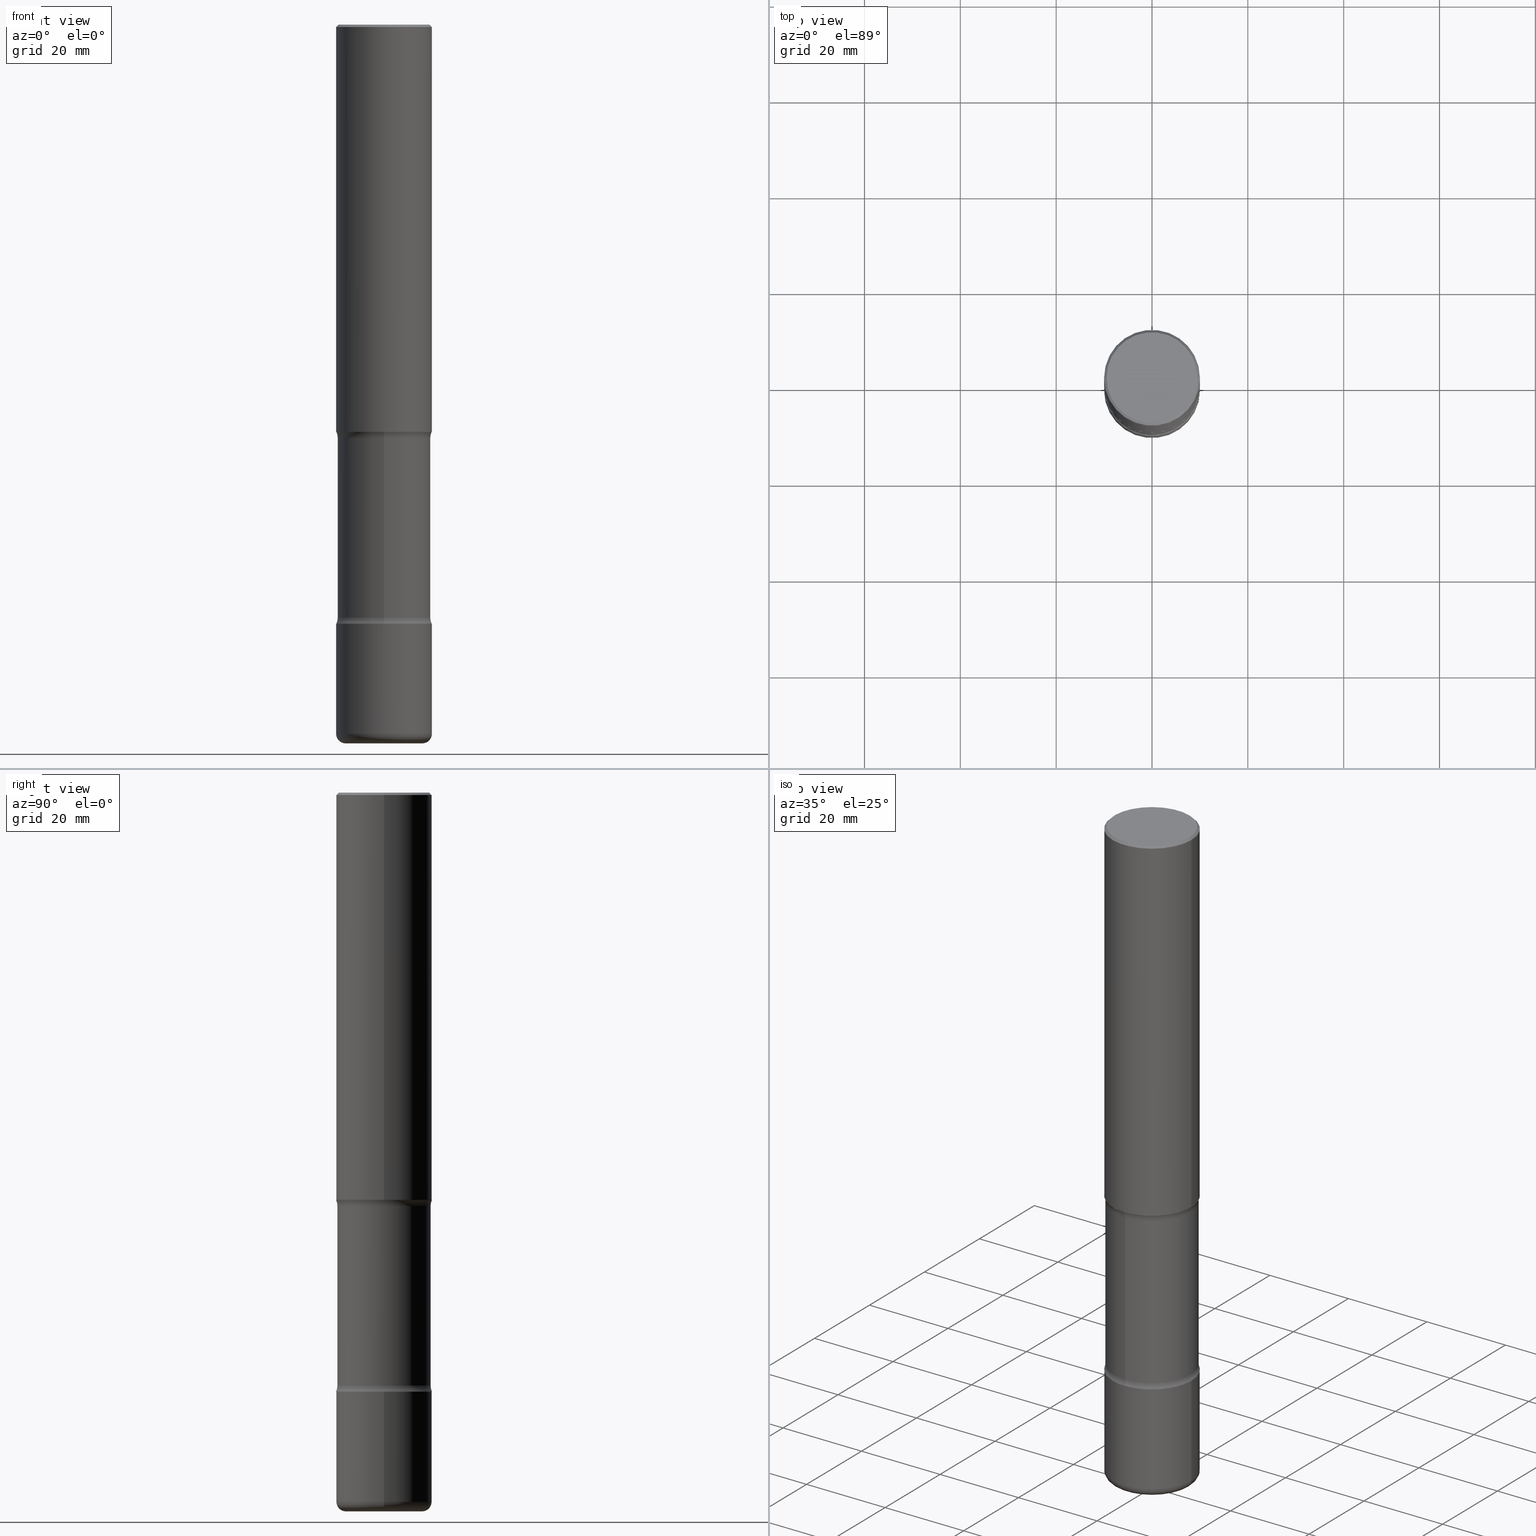
[diagram: canonical four-view strip — front | top / right | iso, engineering-drawing reading convention]
A machine part, canonical four-view strip (front | top / right | iso — engineering-drawing reading convention). The complete STEP part file that produces these views, byte-faithful:
ISO-10303-21;
HEADER;
FILE_DESCRIPTION (( 'STEP AP203' ),
    '1' );
FILE_NAME ('44787.STEP',
    '2024-03-02T03:17:34',
    ( '' ),
    ( '' ),
    'SwSTEP 2.0',
    'SolidWorks 2023',
    '' );
FILE_SCHEMA (( 'CONFIG_CONTROL_DESIGN' ));
ENDSEC;

DATA;
#1 = CALENDAR_DATE ( 2024, 1, 3 ) ;
#2 = CIRCLE ( 'NONE', #72, 0.3937000000000001609 ) ;
#3 = CIRCLE ( 'NONE', #278, 0.3937000000000001609 ) ;
#4 = DIRECTION ( 'NONE',  ( 6.860497997771532351E-15, 1.000000000000000000, 0.000000000000000000 ) ) ;
#5 = EDGE_CURVE ( 'NONE', #483, #218, #308, .T. ) ;
#6 = DATE_AND_TIME ( #13, #64 ) ;
#7 = ORIENTED_EDGE ( 'NONE', *, *, #240, .F. ) ;
#8 = EDGE_CURVE ( 'NONE', #447, #489, #71, .T. ) ;
#9 = CARTESIAN_POINT ( 'NONE',  ( 2.749192406205166047E-15, 0.3936999999999885036, -3.346399999999999153 ) ) ;
#10 = COORDINATED_UNIVERSAL_TIME_OFFSET ( 5, 0, .BEHIND. ) ;
#11 = CYLINDRICAL_SURFACE ( 'NONE', #108, 0.3937000000000002164 ) ;
#12 = DIRECTION ( 'NONE',  ( 2.536601494120493495E-29, -3.360974142769239712E-15, -1.000000000000000000 ) ) ;
#13 = CALENDAR_DATE ( 2024, 1, 3 ) ;
#14 = CIRCLE ( 'NONE', #413, 0.3831499999999999906 ) ;
#15 = VECTOR ( 'NONE', #169, 39.37007874015748143 ) ;
#16 = ADVANCED_FACE ( 'NONE', ( #267 ), #351, .F. ) ;
#17 = UNCERTAINTY_MEASURE_WITH_UNIT (LENGTH_MEASURE( 1.000000000000000082E-05 ), #96, 'distance_accuracy_value', 'NONE');
#18 = DIRECTION ( 'NONE',  ( 2.536601494120493495E-29, -3.360974142769239712E-15, -1.000000000000000000 ) ) ;
#19 = AXIS2_PLACEMENT_3D ( 'NONE', #202, #423, #382 ) ;
#20 = CC_DESIGN_APPROVAL ( #476, ( #486 ) ) ;
#21 = CARTESIAN_POINT ( 'NONE',  ( 1.203464108899828931E-28, -1.718227796471488199E-14, -4.921199999999998020 ) ) ;
#22 = DIRECTION ( 'NONE',  ( 6.982962677686265133E-15, 1.000000000000000000, -2.775563112689113934E-15 ) ) ;
#23 = ORIENTED_EDGE ( 'NONE', *, *, #432, .T. ) ;
#24 = ORIENTED_EDGE ( 'NONE', *, *, #497, .F. ) ;
#25 = CARTESIAN_POINT ( 'NONE',  ( 1.444171603492631822E-28, -2.061894304653818881E-14, -5.905499999999998195 ) ) ;
#26 = EDGE_CURVE ( 'NONE', #489, #200, #36, .T. ) ;
#27 = ORIENTED_EDGE ( 'NONE', *, *, #372, .T. ) ;
#28 = AXIS2_PLACEMENT_3D ( 'NONE', #110, #499, #469 ) ;
#29 = PLANE ( 'NONE',  #350 ) ;
#30 = ORIENTED_EDGE ( 'NONE', *, *, #360, .T. ) ;
#31 = EDGE_LOOP ( 'NONE', ( #35, #516, #362, #7 ) ) ;
#32 = DIRECTION ( 'NONE',  ( -2.445468806185136877E-29, 3.491481338843145188E-15, 1.000000000000000000 ) ) ;
#33 = DIRECTION ( 'NONE',  ( -1.000000000000000000, 6.982962677686265922E-15, -4.883557194083112340E-29 ) ) ;
#34 = DIRECTION ( 'NONE',  ( 2.536601494120493495E-29, -3.360974142769239712E-15, -1.000000000000000000 ) ) ;
#35 = ORIENTED_EDGE ( 'NONE', *, *, #165, .T. ) ;
#36 = CIRCLE ( 'NONE', #216, 0.3937000000000003830 ) ;
#37 = ADVANCED_FACE ( 'NONE', ( #555 ), #215, .F. ) ;
#38 = CARTESIAN_POINT ( 'NONE',  ( 8.167493925109434306E-29, -1.205834278836177543E-14, -3.396661292263528420 ) ) ;
#39 = PRODUCT_DEFINITION_FORMATION_WITH_SPECIFIED_SOURCE ( 'ANY', '', #541, .NOT_KNOWN. ) ;
#40 = PLANE ( 'NONE',  #396 ) ;
#41 = FACE_OUTER_BOUND ( 'NONE', #89, .T. ) ;
#42 = ORIENTED_EDGE ( 'NONE', *, *, #240, .T. ) ;
#43 = DIRECTION ( 'NONE',  ( -2.445468806185136877E-29, 3.491481338843145188E-15, 1.000000000000000000 ) ) ;
#44 = DIRECTION ( 'NONE',  ( 1.000000000000000000, -6.860497997771530774E-15, 4.842397131823518897E-29 ) ) ;
#45 = ADVANCED_FACE ( 'NONE', ( #91 ), #261, .T. ) ;
#46 = DATE_AND_TIME ( #366, #254 ) ;
#47 = AXIS2_PLACEMENT_3D ( 'NONE', #455, #286, #54 ) ;
#48 = EDGE_LOOP ( 'NONE', ( #556, #122, #503, #315 ) ) ;
#49 = ORIENTED_EDGE ( 'NONE', *, *, #26, .T. ) ;
#50 = PERSON_AND_ORGANIZATION ( #465, #149 ) ;
#51 = CARTESIAN_POINT ( 'NONE',  ( 1.453141793966108941E-28, -2.049048481344264493E-14, -5.905499999999998195 ) ) ;
#52 = PERSON_AND_ORGANIZATION ( #465, #149 ) ;
#53 = DIRECTION ( 'NONE',  ( -2.445468806185136597E-29, 3.491481338843145583E-15, 1.000000000000000000 ) ) ;
#54 = DIRECTION ( 'NONE',  ( 1.000000000000000000, -6.982962677686266711E-15, 4.876212485538977921E-29 ) ) ;
#55 = CC_DESIGN_PERSON_AND_ORGANIZATION_ASSIGNMENT ( #328, #279, ( #486 ) ) ;
#56 = DIRECTION ( 'NONE',  ( 1.000000000000000000, 0.000000000000000000, 0.000000000000000000 ) ) ;
#57 = CC_DESIGN_APPROVAL ( #212, ( #395 ) ) ;
#58 = CARTESIAN_POINT ( 'NONE',  ( -0.3736999999999998101, 2.644447966039787875E-15, 8.537024980182450727E-18 ) ) ;
#59 = CARTESIAN_POINT ( 'NONE',  ( 0.3150000000000001688, -2.281857629000936535E-14, -5.905499999999998195 ) ) ;
#60 = DIRECTION ( 'NONE',  ( 6.982962677686265922E-15, 1.000000000000000000, -2.851987987643756480E-15 ) ) ;
#61 = ADVANCED_FACE ( 'NONE', ( #41 ), #222, .T. ) ;
#62 = FACE_OUTER_BOUND ( 'NONE', #118, .T. ) ;
#63 = AXIS2_PLACEMENT_3D ( 'NONE', #158, #467, #548 ) ;
#64 = LOCAL_TIME ( 22, 17, 34.00000000000000000, #407 ) ;
#65 = DIRECTION ( 'NONE',  ( -0.7071067811865456854, 2.468850131082237733E-15, -0.7071067811865493491 ) ) ;
#66 = ORIENTED_EDGE ( 'NONE', *, *, #515, .T. ) ;
#67 = ADVANCED_FACE ( 'NONE', ( #496 ), #146, .T. ) ;
#68 = DIRECTION ( 'NONE',  ( 2.438088387897960049E-29, -3.491481338843145188E-15, -1.000000000000000000 ) ) ;
#69 = ORIENTED_EDGE ( 'NONE', *, *, #332, .T. ) ;
#70 = CARTESIAN_POINT ( 'NONE',  ( 8.167493925109434306E-29, -1.205834278836177543E-14, -3.396661292263528420 ) ) ;
#71 = CIRCLE ( 'NONE', #404, 0.1250000000000000278 ) ;
#72 = AXIS2_PLACEMENT_3D ( 'NONE', #234, #12, #412 ) ;
#73 = ORIENTED_EDGE ( 'NONE', *, *, #109, .F. ) ;
#74 = CC_DESIGN_APPROVAL ( #330, ( #39 ) ) ;
#75 = EDGE_LOOP ( 'NONE', ( #82, #365, #451, #337 ) ) ;
#76 = DIRECTION ( 'NONE',  ( 7.105427357601001859E-15, 1.000000000000000000, -3.491481338843145583E-15 ) ) ;
#77 = DIRECTION ( 'NONE',  ( -1.000000000000000000, 6.982962677686265922E-15, -4.876176775795935793E-29 ) ) ;
#78 = EDGE_CURVE ( 'NONE', #140, #183, #533, .T. ) ;
#79 = ORIENTED_EDGE ( 'NONE', *, *, #265, .F. ) ;
#80 = CARTESIAN_POINT ( 'NONE',  ( -0.3936999999999998279, 2.679362779428218735E-15, -0.02000000000000008715 ) ) ;
#81 = DIRECTION ( 'NONE',  ( -2.445468806185136597E-29, 3.491481338843145583E-15, 1.000000000000000000 ) ) ;
#82 = ORIENTED_EDGE ( 'NONE', *, *, #101, .F. ) ;
#83 = CIRCLE ( 'NONE', #19, 0.3937000000000001609 ) ;
#84 = CC_DESIGN_SECURITY_CLASSIFICATION ( #395, ( #39 ) ) ;
#85 = FACE_OUTER_BOUND ( 'NONE', #48, .T. ) ;
#86 = ORIENTED_EDGE ( 'NONE', *, *, #244, .F. ) ;
#87 = EDGE_LOOP ( 'NONE', ( #196, #258, #30, #73 ) ) ;
#88 = LINE ( 'NONE', #161, #512 ) ;
#89 = EDGE_LOOP ( 'NONE', ( #477, #223, #480, #319 ) ) ;
#90 = VERTEX_POINT ( 'NONE', #58 ) ;
#91 = FACE_OUTER_BOUND ( 'NONE', #128, .T. ) ;
#92 = VERTEX_POINT ( 'NONE', #331 ) ;
#93 =( NAMED_UNIT ( * ) SI_UNIT ( $, .STERADIAN. ) SOLID_ANGLE_UNIT ( ) );
#94 = VECTOR ( 'NONE', #500, 39.37007874015748143 ) ;
#95 = AXIS2_PLACEMENT_3D ( 'NONE', #475, #76, #557 ) ;
#96 =( CONVERSION_BASED_UNIT ( 'INCH', #205 ) LENGTH_UNIT ( ) NAMED_UNIT ( #313 ) );
#97 = LINE ( 'NONE', #189, #117 ) ;
#98 = EDGE_CURVE ( 'NONE', #152, #90, #253, .T. ) ;
#99 = APPROVAL_ROLE ( '' ) ;
#100 = AXIS2_PLACEMENT_3D ( 'NONE', #186, #367, #495 ) ;
#101 = EDGE_CURVE ( 'NONE', #298, #509, #375, .T. ) ;
#102 = PLANE ( 'NONE',  #359 ) ;
#103 = DIRECTION ( 'NONE',  ( 2.536601494120493495E-29, -3.360974142769239712E-15, -1.000000000000000000 ) ) ;
#104 = DIRECTION ( 'NONE',  ( 2.536601494120493495E-29, -3.360974142769239712E-15, -1.000000000000000000 ) ) ;
#105 = CARTESIAN_POINT ( 'NONE',  ( 1.444171603492631822E-28, -2.061894304653818881E-14, -5.905499999999998195 ) ) ;
#106 = CARTESIAN_POINT ( 'NONE',  ( -2.628599807846016670E-15, -0.3831500000000204742, -5.905499999999997307 ) ) ;
#107 = CARTESIAN_POINT ( 'NONE',  ( 0.3736999999999998101, -2.667287895133366781E-15, 8.537024980219274507E-18 ) ) ;
#108 = AXIS2_PLACEMENT_3D ( 'NONE', #135, #53, #247 ) ;
#109 = EDGE_CURVE ( 'NONE', #137, #171, #168, .T. ) ;
#110 = CARTESIAN_POINT ( 'NONE',  ( 8.183516813017936514E-29, -1.168389315230469505E-14, -3.346399999999997821 ) ) ;
#111 = ADVANCED_FACE ( 'NONE', ( #139 ), #235, .F. ) ;
#112 = EDGE_LOOP ( 'NONE', ( #339, #389, #69, #86 ) ) ;
#113 = CARTESIAN_POINT ( 'NONE',  ( 0.3937000000000001609, -1.993147037091996521E-14, -4.921199999999998020 ) ) ;
#114 = CARTESIAN_POINT ( 'NONE',  ( -0.3937000000000003830, -1.754675671448371516E-14, -5.826799999999997759 ) ) ;
#115 = DIRECTION ( 'NONE',  ( 6.982962677686265922E-15, 1.000000000000000000, -2.851987987643756480E-15 ) ) ;
#116 = ORIENTED_EDGE ( 'NONE', *, *, #190, .F. ) ;
#117 = VECTOR ( 'NONE', #371, 39.37007874015748143 ) ;
#118 = EDGE_LOOP ( 'NONE', ( #294, #125, #505, #127 ) ) ;
#119 = DIRECTION ( 'NONE',  ( 1.000000000000000000, -6.982962677686265133E-15, 0.000000000000000000 ) ) ;
#120 = EDGE_CURVE ( 'NONE', #298, #137, #2, .T. ) ;
#121 = PRODUCT_RELATED_PRODUCT_CATEGORY ( 'detail', '', ( #541 ) ) ;
#122 = ORIENTED_EDGE ( 'NONE', *, *, #78, .T. ) ;
#123 = CARTESIAN_POINT ( 'NONE',  ( -2.664788934784287418E-15, -0.3831500000000169770, -4.870938707736466533 ) ) ;
#124 = ORIENTED_EDGE ( 'NONE', *, *, #185, .T. ) ;
#125 = ORIENTED_EDGE ( 'NONE', *, *, #185, .F. ) ;
#126 = CARTESIAN_POINT ( 'NONE',  ( -0.3937000000000000499, 2.797406750687514786E-15, -1.936584745033356735E-29 ) ) ;
#127 = ORIENTED_EDGE ( 'NONE', *, *, #5, .T. ) ;
#128 = EDGE_LOOP ( 'NONE', ( #408, #383, #436, #431 ) ) ;
#129 = EDGE_CURVE ( 'NONE', #152, #218, #97, .T. ) ;
#130 = CIRCLE ( 'NONE', #280, 0.3831500000000000461 ) ;
#131 = TOROIDAL_SURFACE ( 'NONE', #352, 0.5081500000000001016, 0.1250000000000000555 ) ;
#132 = DIRECTION ( 'NONE',  ( -2.445468806185136597E-29, 3.491481338843145583E-15, 1.000000000000000000 ) ) ;
#133 = ORIENTED_EDGE ( 'NONE', *, *, #197, .F. ) ;
#134 = APPROVAL_STATUS ( 'not_yet_approved' ) ;
#135 = CARTESIAN_POINT ( 'NONE',  ( 0.000000000000000000, 0.000000000000000000, 0.000000000000000000 ) ) ;
#136 = DIRECTION ( 'NONE',  ( -1.000000000000000000, 6.982962677686265922E-15, -4.876176775795935793E-29 ) ) ;
#137 = VERTEX_POINT ( 'NONE', #536 ) ;
#138 = COORDINATED_UNIVERSAL_TIME_OFFSET ( 5, 0, .BEHIND. ) ;
#139 = FACE_OUTER_BOUND ( 'NONE', #164, .T. ) ;
#140 = VERTEX_POINT ( 'NONE', #145 ) ;
#141 = AXIS2_PLACEMENT_3D ( 'NONE', #288, #545, #242 ) ;
#142 =( NAMED_UNIT ( * ) PLANE_ANGLE_UNIT ( ) SI_UNIT ( $, .RADIAN. ) );
#143 = ADVANCED_FACE ( 'NONE', ( #195 ), #206, .T. ) ;
#144 = PERSON_AND_ORGANIZATION ( #465, #149 ) ;
#145 = CARTESIAN_POINT ( 'NONE',  ( -0.3937000000000002164, -3.079454638853261231E-15, -3.346399999999997821 ) ) ;
#146 = CYLINDRICAL_SURFACE ( 'NONE', #484, 0.3831499999999999906 ) ;
#147 = CARTESIAN_POINT ( 'NONE',  ( 2.675522149955637761E-15, 0.3831499999999795070, -5.905499999999999972 ) ) ;
#148 = AXIS2_PLACEMENT_3D ( 'NONE', #322, #452, #282 ) ;
#149 = ORGANIZATION ( 'UNSPECIFIED', 'UNSPECIFIED', '' ) ;
#150 = DIRECTION ( 'NONE',  ( -6.982962677686265922E-15, -1.000000000000000000, 3.360974142769239318E-15 ) ) ;
#151 = DIRECTION ( 'NONE',  ( 2.536601494120493495E-29, -3.360974142769239712E-15, -1.000000000000000000 ) ) ;
#152 = VERTEX_POINT ( 'NONE', #107 ) ;
#153 = APPLICATION_CONTEXT ( 'configuration controlled 3d designs of mechanical parts and assemblies' ) ;
#154 = LINE ( 'NONE', #147, #368 ) ;
#155 = AXIS2_PLACEMENT_3D ( 'NONE', #177, #531, #287 ) ;
#156 = ADVANCED_FACE ( 'NONE', ( #470 ), #449, .T. ) ;
#157 = ORIENTED_EDGE ( 'NONE', *, *, #197, .T. ) ;
#158 = CARTESIAN_POINT ( 'NONE',  ( 1.203464108899828931E-28, -1.718227796471488199E-14, -4.921199999999998020 ) ) ;
#159 = ORIENTED_EDGE ( 'NONE', *, *, #354, .F. ) ;
#160 = DIRECTION ( 'NONE',  ( 1.000000000000000000, -6.982962677686267499E-15, 0.000000000000000000 ) ) ;
#161 = CARTESIAN_POINT ( 'NONE',  ( 0.3937000000000000499, -2.749192406205083217E-15, 1.919750796630860172E-29 ) ) ;
#162 = CARTESIAN_POINT ( 'NONE',  ( 1.453141793966108941E-28, -2.049048481344264493E-14, -5.905499999999998195 ) ) ;
#163 = CARTESIAN_POINT ( 'NONE',  ( -0.3937000000000001609, -1.596581396425554158E-14, -4.921199999999998020 ) ) ;
#164 = EDGE_LOOP ( 'NONE', ( #271, #347, #381, #355 ) ) ;
#165 = EDGE_CURVE ( 'NONE', #174, #447, #510, .T. ) ;
#166 = CARTESIAN_POINT ( 'NONE',  ( 8.163356291050434127E-29, -1.206426811583377416E-14, -3.396661292263528864 ) ) ;
#167 = ORIENTED_EDGE ( 'NONE', *, *, #528, .F. ) ;
#168 = CIRCLE ( 'NONE', #458, 0.1249999999999999584 ) ;
#169 = DIRECTION ( 'NONE',  ( -2.445468806185136877E-29, 3.491481338843145188E-15, 1.000000000000000000 ) ) ;
#170 = CARTESIAN_POINT ( 'NONE',  ( 2.609533152651356226E-15, 0.3736999999999998101, -1.300498063835582617E-15 ) ) ;
#171 = VERTEX_POINT ( 'NONE', #464 ) ;
#172 = CARTESIAN_POINT ( 'NONE',  ( -0.3937000000000002164, 2.797406750687515970E-15, -1.936584745033357576E-29 ) ) ;
#173 = CARTESIAN_POINT ( 'NONE',  ( 0.000000000000000000, 0.000000000000000000, 0.000000000000000000 ) ) ;
#174 = VERTEX_POINT ( 'NONE', #201 ) ;
#175 = CC_DESIGN_PERSON_AND_ORGANIZATION_ASSIGNMENT ( #181, #454, ( #39 ) ) ;
#176 = AXIS2_PLACEMENT_3D ( 'NONE', #162, #544, #115 ) ;
#177 = CARTESIAN_POINT ( 'NONE',  ( 1.424925763987954893E-28, -2.034416346517123547E-14, -5.826799999999997759 ) ) ;
#178 = VECTOR ( 'NONE', #43, 39.37007874015748143 ) ;
#179 = DATE_AND_TIME ( #225, #334 ) ;
#180 = ORIENTED_EDGE ( 'NONE', *, *, #502, .F. ) ;
#181 = PERSON_AND_ORGANIZATION ( #465, #149 ) ;
#182 = CARTESIAN_POINT ( 'NONE',  ( 0.3150000000000001688, -2.254379670864241201E-14, -5.826799999999997759 ) ) ;
#183 = VERTEX_POINT ( 'NONE', #537 ) ;
#184 = APPLICATION_PROTOCOL_DEFINITION ( 'international standard', 'config_control_design', 1994, #325 ) ;
#185 = EDGE_CURVE ( 'NONE', #90, #152, #324, .T. ) ;
#186 = CARTESIAN_POINT ( 'NONE',  ( 8.163356291050434127E-29, -1.206426811583377416E-14, -3.396661292263528864 ) ) ;
#187 = AXIS2_PLACEMENT_3D ( 'NONE', #173, #357, #519 ) ;
#188 = AXIS2_PLACEMENT_3D ( 'NONE', #401, #560, #314 ) ;
#189 = CARTESIAN_POINT ( 'NONE',  ( 0.3936999999999998279, -2.770807688499514156E-15, -0.02000000000000008715 ) ) ;
#190 = EDGE_CURVE ( 'NONE', #92, #399, #406, .T. ) ;
#191 = CARTESIAN_POINT ( 'NONE',  ( 1.191172866660927180E-28, -1.700679160071062336E-14, -4.870938707736467421 ) ) ;
#192 = AXIS2_PLACEMENT_3D ( 'NONE', #38, #378, #250 ) ;
#193 = APPROVAL_PERSON_ORGANIZATION ( #236, #476, #99 ) ;
#194 = DIRECTION ( 'NONE',  ( -1.000000000000000000, 6.982962677686266711E-15, 0.000000000000000000 ) ) ;
#195 = FACE_OUTER_BOUND ( 'NONE', #31, .T. ) ;
#196 = ORIENTED_EDGE ( 'NONE', *, *, #120, .F. ) ;
#197 = EDGE_CURVE ( 'NONE', #399, #276, #386, .T. ) ;
#198 = DIRECTION ( 'NONE',  ( 6.982962677686265922E-15, 1.000000000000000000, -2.851987987643756480E-15 ) ) ;
#199 = VERTEX_POINT ( 'NONE', #163 ) ;
#200 = VERTEX_POINT ( 'NONE', #9 ) ;
#201 = CARTESIAN_POINT ( 'NONE',  ( 2.675522149955574652E-15, 0.3831499999999879447, -3.396661292263529308 ) ) ;
#202 = CARTESIAN_POINT ( 'NONE',  ( 1.203464108899828931E-28, -1.718227796471488199E-14, -4.921199999999998020 ) ) ;
#203 = AXIS2_PLACEMENT_3D ( 'NONE', #415, #380, #384 ) ;
#204 = CIRCLE ( 'NONE', #95, 0.07870000000000031137 ) ;
#205 = LENGTH_MEASURE_WITH_UNIT ( LENGTH_MEASURE( 0.02539999999999999897 ), #487 );
#206 = CYLINDRICAL_SURFACE ( 'NONE', #176, 0.3831499999999999906 ) ;
#207 = EDGE_LOOP ( 'NONE', ( #445, #485, #345, #79 ) ) ;
#208 = FACE_OUTER_BOUND ( 'NONE', #207, .T. ) ;
#209 = ADVANCED_FACE ( 'NONE', ( #239 ), #553, .T. ) ;
#210 = ADVANCED_BREP_SHAPE_REPRESENTATION ( '44787', ( #457, #269, #259, #450 ), #327 ) ;
#211 = ORIENTED_EDGE ( 'NONE', *, *, #502, .T. ) ;
#212 = APPROVAL ( #256, 'UNSPECIFIED' ) ;
#213 = CARTESIAN_POINT ( 'NONE',  ( 8.183516813017936514E-29, -1.168389315230469505E-14, -3.346399999999997821 ) ) ;
#214 = CARTESIAN_POINT ( 'NONE',  ( 1.424925763987954893E-28, -2.034416346517123547E-14, -5.826799999999997759 ) ) ;
#215 = PLANE ( 'NONE',  #522 ) ;
#216 = AXIS2_PLACEMENT_3D ( 'NONE', #435, #34, #479 ) ;
#217 = TOROIDAL_SURFACE ( 'NONE', #466, 0.3150000000000001688, 0.07870000000000026974 ) ;
#218 = VERTEX_POINT ( 'NONE', #424 ) ;
#219 = DATE_TIME_ROLE ( 'classification_date' ) ;
#220 = DIRECTION ( 'NONE',  ( 6.982962677686266711E-15, 1.000000000000000000, -3.360974142769239712E-15 ) ) ;
#221 = ADVANCED_FACE ( 'NONE', ( #208 ), #11, .T. ) ;
#222 = CYLINDRICAL_SURFACE ( 'NONE', #187, 0.3937000000000002164 ) ;
#223 = ORIENTED_EDGE ( 'NONE', *, *, #507, .T. ) ;
#224 = CYLINDRICAL_SURFACE ( 'NONE', #188, 0.3937000000000000499 ) ;
#225 = CALENDAR_DATE ( 2024, 1, 3 ) ;
#226 = DIRECTION ( 'NONE',  ( -2.445468806185136597E-29, 3.491481338843145583E-15, 1.000000000000000000 ) ) ;
#227 = AXIS2_PLACEMENT_3D ( 'NONE', #182, #549, #160 ) ;
#228 = CIRCLE ( 'NONE', #292, 0.3937000000000002720 ) ;
#229 = MECHANICAL_CONTEXT ( 'NONE', #325, 'mechanical' ) ;
#230 = CARTESIAN_POINT ( 'NONE',  ( 4.890937612370294178E-31, -6.982962677686321191E-17, -0.02000000000000008715 ) ) ;
#231 = ORIENTED_EDGE ( 'NONE', *, *, #26, .F. ) ;
#232 = ADVANCED_FACE ( 'NONE', ( #335 ), #102, .T. ) ;
#233 = APPLICATION_PROTOCOL_DEFINITION ( 'international standard', 'config_control_design', 1994, #153 ) ;
#234 = CARTESIAN_POINT ( 'NONE',  ( 1.203464108899828931E-28, -1.718227796471488199E-14, -4.921199999999998020 ) ) ;
#235 = TOROIDAL_SURFACE ( 'NONE', #100, 0.5081500000000001016, 0.1250000000000000555 ) ;
#236 = PERSON_AND_ORGANIZATION ( #465, #149 ) ;
#237 = AXIS2_PLACEMENT_3D ( 'NONE', #307, #132, #482 ) ;
#238 = CARTESIAN_POINT ( 'NONE',  ( 3.548392484666395067E-15, 0.5081499999999830042, -4.870938707736469198 ) ) ;
#239 = FACE_OUTER_BOUND ( 'NONE', #112, .T. ) ;
#240 = EDGE_CURVE ( 'NONE', #174, #171, #154, .T. ) ;
#241 = CARTESIAN_POINT ( 'NONE',  ( -3.486162057567484542E-15, -0.5081500000000169770, -4.870938707736466533 ) ) ;
#242 = DIRECTION ( 'NONE',  ( 1.000000000000000000, -6.982962677686266711E-15, 0.000000000000000000 ) ) ;
#243 = AXIS2_PLACEMENT_3D ( 'NONE', #105, #290, #275 ) ;
#244 = EDGE_CURVE ( 'NONE', #90, #483, #462, .T. ) ;
#245 = CARTESIAN_POINT ( 'NONE',  ( 1.190714821994619211E-28, -1.701335106103498951E-14, -4.870938707736467421 ) ) ;
#246 = EDGE_LOOP ( 'NONE', ( #66, #320 ) ) ;
#247 = DIRECTION ( 'NONE',  ( 1.000000000000000000, -6.982962677686266711E-15, 4.876176775795935793E-29 ) ) ;
#248 = PRODUCT_DEFINITION_SHAPE ( 'NONE', 'NONE',  #486 ) ;
#249 = SHAPE_DEFINITION_REPRESENTATION ( #248, #210 ) ;
#250 = DIRECTION ( 'NONE',  ( 6.982962677686266711E-15, 1.000000000000000000, -2.851987987643756086E-15 ) ) ;
#251 = PLANE ( 'NONE',  #28 ) ;
#252 = CLOSED_SHELL ( 'NONE', ( #45, #209, #295, #37, #374, #558 ) ) ;
#253 = CIRCLE ( 'NONE', #47, 0.3736999999999998101 ) ;
#254 = LOCAL_TIME ( 22, 17, 34.00000000000000000, #10 ) ;
#255 = CARTESIAN_POINT ( 'NONE',  ( 1.444171603492631822E-28, -2.061894304653818881E-14, -5.905499999999998195 ) ) ;
#256 = APPROVAL_STATUS ( 'not_yet_approved' ) ;
#257 = LINE ( 'NONE', #172, #15 ) ;
#258 = ORIENTED_EDGE ( 'NONE', *, *, #101, .T. ) ;
#259 = MANIFOLD_SOLID_BREP ( 'Body-Move/Copy2[4]', #481 ) ;
#260 = DIRECTION ( 'NONE',  ( 6.982962677686265922E-15, 1.000000000000000000, -2.775563112689115512E-15 ) ) ;
#261 = CYLINDRICAL_SURFACE ( 'NONE', #300, 0.3937000000000000499 ) ;
#262 = AXIS2_PLACEMENT_3D ( 'NONE', #506, #342, #22 ) ;
#263 = EDGE_LOOP ( 'NONE', ( #409, #428 ) ) ;
#264 = PERSON_AND_ORGANIZATION ( #465, #149 ) ;
#265 = EDGE_CURVE ( 'NONE', #199, #385, #83, .T. ) ;
#266 = CARTESIAN_POINT ( 'NONE',  ( 8.183516813017936514E-29, -1.168389315230469505E-14, -3.346399999999997821 ) ) ;
#267 = FACE_OUTER_BOUND ( 'NONE', #559, .T. ) ;
#268 = EDGE_LOOP ( 'NONE', ( #159, #231 ) ) ;
#269 = MANIFOLD_SOLID_BREP ( 'Body-Move/Copy2[2]', #252 ) ;
#270 = ORIENTED_EDGE ( 'NONE', *, *, #8, .T. ) ;
#271 = ORIENTED_EDGE ( 'NONE', *, *, #8, .F. ) ;
#272 = PERSON_AND_ORGANIZATION_ROLE ( 'design_owner' ) ;
#273 = CARTESIAN_POINT ( 'NONE',  ( 0.000000000000000000, 0.000000000000000000, 0.000000000000000000 ) ) ;
#274 = ADVANCED_FACE ( 'NONE', ( #426 ), #29, .F. ) ;
#275 = DIRECTION ( 'NONE',  ( 1.000000000000000000, -6.982962677686270655E-15, 0.000000000000000000 ) ) ;
#276 = VERTEX_POINT ( 'NONE', #387 ) ;
#277 = AXIS2_PLACEMENT_3D ( 'NONE', #283, #542, #340 ) ;
#278 = AXIS2_PLACEMENT_3D ( 'NONE', #353, #513, #260 ) ;
#279 = PERSON_AND_ORGANIZATION_ROLE ( 'creator' ) ;
#280 = AXIS2_PLACEMENT_3D ( 'NONE', #70, #18, #338 ) ;
#281 = CIRCLE ( 'NONE', #237, 0.3937000000000002720 ) ;
#282 = DIRECTION ( 'NONE',  ( 1.000000000000000000, -6.982962677686265133E-15, 0.000000000000000000 ) ) ;
#283 = CARTESIAN_POINT ( 'NONE',  ( -2.087702828670439639E-46, 2.980686340760894400E-32, 8.537024980200822558E-18 ) ) ;
#284 = DESIGN_CONTEXT ( 'detailed design', #153, 'design' ) ;
#285 = DIRECTION ( 'NONE',  ( 2.536601494120493495E-29, -3.360974142769239318E-15, -1.000000000000000000 ) ) ;
#286 = DIRECTION ( 'NONE',  ( -2.445468806185136597E-29, 3.491481338843145583E-15, 1.000000000000000000 ) ) ;
#287 = DIRECTION ( 'NONE',  ( 1.000000000000000000, -6.982962677686269077E-15, 4.883557194083114022E-29 ) ) ;
#288 = CARTESIAN_POINT ( 'NONE',  ( 4.890937612370294178E-31, -6.982962677686321191E-17, -0.02000000000000008715 ) ) ;
#289 = EDGE_CURVE ( 'NONE', #447, #509, #336, .T. ) ;
#290 = DIRECTION ( 'NONE',  ( -2.445468806185136597E-29, 3.491481338843145583E-15, 1.000000000000000000 ) ) ;
#291 = CARTESIAN_POINT ( 'NONE',  ( -0.3936999999999998279, 2.679362779428218735E-15, -0.02000000000000008715 ) ) ;
#292 = AXIS2_PLACEMENT_3D ( 'NONE', #377, #461, #540 ) ;
#293 = CARTESIAN_POINT ( 'NONE',  ( 1.190714821994619211E-28, -1.701335106103498951E-14, -4.870938707736467421 ) ) ;
#294 = ORIENTED_EDGE ( 'NONE', *, *, #129, .F. ) ;
#295 = ADVANCED_FACE ( 'NONE', ( #62 ), #309, .T. ) ;
#296 = DIRECTION ( 'NONE',  ( 6.982962677686265922E-15, 1.000000000000000000, -2.851987987643756480E-15 ) ) ;
#297 = ORIENTED_EDGE ( 'NONE', *, *, #265, .T. ) ;
#298 = VERTEX_POINT ( 'NONE', #543 ) ;
#299 = CARTESIAN_POINT ( 'NONE',  ( -2.664788934784326861E-15, -0.3831500000000121475, -3.396661292263527088 ) ) ;
#300 = AXIS2_PLACEMENT_3D ( 'NONE', #273, #81, #440 ) ;
#301 = EDGE_LOOP ( 'NONE', ( #23, #211, #167, #133 ) ) ;
#302 = DIRECTION ( 'NONE',  ( 2.536601494120493495E-29, -3.360974142769239318E-15, -1.000000000000000000 ) ) ;
#303 = ORIENTED_EDGE ( 'NONE', *, *, #360, .F. ) ;
#304 = ORIENTED_EDGE ( 'NONE', *, *, #98, .T. ) ;
#305 = CARTESIAN_POINT ( 'NONE',  ( 1.203464108899828931E-28, -1.718227796471488199E-14, -4.921199999999998020 ) ) ;
#306 = EDGE_LOOP ( 'NONE', ( #397, #270, #49, #24 ) ) ;
#307 = CARTESIAN_POINT ( 'NONE',  ( 1.424925763987954893E-28, -2.034416346517123547E-14, -5.826799999999997759 ) ) ;
#308 = CIRCLE ( 'NONE', #552, 0.3936999999999998279 ) ;
#309 = CONICAL_SURFACE ( 'NONE', #492, 0.3936999999999998279, 0.7853981633974457255 ) ;
#310 = CIRCLE ( 'NONE', #427, 0.3937000000000002164 ) ;
#311 = EDGE_LOOP ( 'NONE', ( #433, #116 ) ) ;
#312 = DATE_AND_TIME ( #400, #369 ) ;
#313 = DIMENSIONAL_EXPONENTS ( 1.000000000000000000, 0.000000000000000000, 0.000000000000000000, 0.000000000000000000, 0.000000000000000000, 0.000000000000000000, 0.000000000000000000 ) ;
#314 = DIRECTION ( 'NONE',  ( 1.000000000000000000, -6.982962677686265922E-15, 4.876176775795935793E-29 ) ) ;
#315 = ORIENTED_EDGE ( 'NONE', *, *, #5, .F. ) ;
#316 = APPROVAL_STATUS ( 'not_yet_approved' ) ;
#317 = EDGE_CURVE ( 'NONE', #385, #199, #419, .T. ) ;
#318 = CC_DESIGN_DATE_AND_TIME_ASSIGNMENT ( #321, #219, ( #395 ) ) ;
#319 = ORIENTED_EDGE ( 'NONE', *, *, #349, .F. ) ;
#320 = ORIENTED_EDGE ( 'NONE', *, *, #120, .T. ) ;
#321 = DATE_AND_TIME ( #1, #473 ) ;
#322 = CARTESIAN_POINT ( 'NONE',  ( 8.183516813017936514E-29, -1.168389315230469505E-14, -3.346399999999997821 ) ) ;
#323 = EDGE_LOOP ( 'NONE', ( #446, #27, #42, #303 ) ) ;
#324 = CIRCLE ( 'NONE', #277, 0.3736999999999998101 ) ;
#325 = APPLICATION_CONTEXT ( 'configuration controlled 3d designs of mechanical parts and assemblies' ) ;
#326 = CIRCLE ( 'NONE', #546, 0.3831499999999999906 ) ;
#327 =( GEOMETRIC_REPRESENTATION_CONTEXT ( 3 ) GLOBAL_UNCERTAINTY_ASSIGNED_CONTEXT ( ( #17 ) ) GLOBAL_UNIT_ASSIGNED_CONTEXT ( ( #96, #142, #93 ) ) REPRESENTATION_CONTEXT ( 'NONE', 'WORKASPACE' ) );
#328 = PERSON_AND_ORGANIZATION ( #465, #149 ) ;
#329 = EDGE_CURVE ( 'NONE', #171, #509, #326, .T. ) ;
#330 = APPROVAL ( #316, 'UNSPECIFIED' ) ;
#331 = CARTESIAN_POINT ( 'NONE',  ( -0.3150000000000001688, -1.796374507168879596E-14, -5.905499999999998195 ) ) ;
#332 = EDGE_CURVE ( 'NONE', #218, #483, #394, .T. ) ;
#333 = CLOSED_SHELL ( 'NONE', ( #61, #156, #232, #453, #221, #16 ) ) ;
#334 = LOCAL_TIME ( 22, 17, 34.00000000000000000, #138 ) ;
#335 = FACE_OUTER_BOUND ( 'NONE', #311, .T. ) ;
#336 = LINE ( 'NONE', #106, #94 ) ;
#337 = ORIENTED_EDGE ( 'NONE', *, *, #329, .T. ) ;
#338 = DIRECTION ( 'NONE',  ( 6.982962677686266711E-15, 1.000000000000000000, -2.851987987643756086E-15 ) ) ;
#339 = ORIENTED_EDGE ( 'NONE', *, *, #98, .F. ) ;
#340 = DIRECTION ( 'NONE',  ( 1.000000000000000000, -6.982962677686266711E-15, 4.876212485538977921E-29 ) ) ;
#341 = VECTOR ( 'NONE', #65, 39.37007874015748143 ) ;
#342 = DIRECTION ( 'NONE',  ( 2.536601494120493495E-29, -3.360974142769239712E-15, -1.000000000000000000 ) ) ;
#343 = APPROVAL_PERSON_ORGANIZATION ( #494, #330, #488 ) ;
#344 = DIRECTION ( 'NONE',  ( -2.445468806185136877E-29, 3.491481338843145188E-15, 1.000000000000000000 ) ) ;
#345 = ORIENTED_EDGE ( 'NONE', *, *, #349, .T. ) ;
#346 = FACE_OUTER_BOUND ( 'NONE', #268, .T. ) ;
#347 = ORIENTED_EDGE ( 'NONE', *, *, #165, .F. ) ;
#348 = DIRECTION ( 'NONE',  ( 2.536601494120493495E-29, -3.360974142769239712E-15, -1.000000000000000000 ) ) ;
#349 = EDGE_CURVE ( 'NONE', #276, #385, #422, .T. ) ;
#350 = AXIS2_PLACEMENT_3D ( 'NONE', #21, #373, #150 ) ;
#351 = PLANE ( 'NONE',  #472 ) ;
#352 = AXIS2_PLACEMENT_3D ( 'NONE', #166, #348, #220 ) ;
#353 = CARTESIAN_POINT ( 'NONE',  ( 1.203464108899828931E-28, -1.718227796471488199E-14, -4.921199999999998020 ) ) ;
#354 = EDGE_CURVE ( 'NONE', #200, #489, #438, .T. ) ;
#355 = ORIENTED_EDGE ( 'NONE', *, *, #354, .T. ) ;
#356 = DIRECTION ( 'NONE',  ( 6.982962677686265922E-15, 1.000000000000000000, -3.360974142769239318E-15 ) ) ;
#357 = DIRECTION ( 'NONE',  ( -2.445468806185136597E-29, 3.491481338843145583E-15, 1.000000000000000000 ) ) ;
#358 = EDGE_LOOP ( 'NONE', ( #124, #304 ) ) ;
#359 = AXIS2_PLACEMENT_3D ( 'NONE', #25, #68, #538 ) ;
#360 = EDGE_CURVE ( 'NONE', #509, #171, #14, .T. ) ;
#361 = DIRECTION ( 'NONE',  ( 2.438088387897960049E-29, -3.491481338843145188E-15, -1.000000000000000000 ) ) ;
#362 = ORIENTED_EDGE ( 'NONE', *, *, #329, .F. ) ;
#363 = SECURITY_CLASSIFICATION_LEVEL ( 'unclassified' ) ;
#364 = DIRECTION ( 'NONE',  ( 6.860497997771532351E-15, 1.000000000000000000, 0.000000000000000000 ) ) ;
#365 = ORIENTED_EDGE ( 'NONE', *, *, #515, .F. ) ;
#366 = CALENDAR_DATE ( 2024, 1, 3 ) ;
#367 = DIRECTION ( 'NONE',  ( 2.536601494120493495E-29, -3.360974142769239712E-15, -1.000000000000000000 ) ) ;
#368 = VECTOR ( 'NONE', #285, 39.37007874015748143 ) ;
#369 = LOCAL_TIME ( 22, 17, 34.00000000000000000, #448 ) ;
#370 = APPROVAL_DATE_TIME ( #6, #330 ) ;
#371 = DIRECTION ( 'NONE',  ( 0.7071067811865456854, -7.319954787623249734E-15, -0.7071067811865493491 ) ) ;
#372 = EDGE_CURVE ( 'NONE', #447, #174, #130, .T. ) ;
#373 = DIRECTION ( 'NONE',  ( -2.536601494120493495E-29, 3.360974142769239318E-15, 1.000000000000000000 ) ) ;
#374 = ADVANCED_FACE ( 'NONE', ( #504 ), #251, .F. ) ;
#375 = CIRCLE ( 'NONE', #425, 0.1249999999999999584 ) ;
#376 = CC_DESIGN_PERSON_AND_ORGANIZATION_ASSIGNMENT ( #52, #535, ( #39 ) ) ;
#377 = CARTESIAN_POINT ( 'NONE',  ( 1.424925763987954893E-28, -2.034416346517123547E-14, -5.826799999999997759 ) ) ;
#378 = DIRECTION ( 'NONE',  ( 2.536601494120493495E-29, -3.360974142769239712E-15, -1.000000000000000000 ) ) ;
#379 = DIRECTION ( 'NONE',  ( 2.445468806185136597E-29, -3.491481338843145583E-15, -1.000000000000000000 ) ) ;
#380 = DIRECTION ( 'NONE',  ( 2.445468806185136597E-29, -3.491481338843145583E-15, -1.000000000000000000 ) ) ;
#381 = ORIENTED_EDGE ( 'NONE', *, *, #497, .T. ) ;
#382 = DIRECTION ( 'NONE',  ( 1.000000000000000000, -6.982962677686265922E-15, 0.000000000000000000 ) ) ;
#383 = ORIENTED_EDGE ( 'NONE', *, *, #524, .T. ) ;
#384 = DIRECTION ( 'NONE',  ( -1.000000000000000000, 6.982962677686266711E-15, 0.000000000000000000 ) ) ;
#385 = VERTEX_POINT ( 'NONE', #113 ) ;
#386 = CIRCLE ( 'NONE', #227, 0.07870000000000031137 ) ;
#387 = CARTESIAN_POINT ( 'NONE',  ( 0.3937000000000003830, -2.309335587137632500E-14, -5.826799999999997759 ) ) ;
#388 = AXIS2_PLACEMENT_3D ( 'NONE', #191, #511, #434 ) ;
#389 = ORIENTED_EDGE ( 'NONE', *, *, #129, .T. ) ;
#390 = FACE_OUTER_BOUND ( 'NONE', #520, .T. ) ;
#391 = DIRECTION ( 'NONE',  ( -6.982962677686269077E-15, -1.000000000000000000, 0.000000000000000000 ) ) ;
#392 = EDGE_CURVE ( 'NONE', #429, #276, #228, .T. ) ;
#393 = CARTESIAN_POINT ( 'NONE',  ( 3.548392484666357991E-15, 0.5081499999999880002, -3.396661292263530640 ) ) ;
#394 = CIRCLE ( 'NONE', #141, 0.3936999999999998279 ) ;
#395 = SECURITY_CLASSIFICATION ( '', '', #363 ) ;
#396 = AXIS2_PLACEMENT_3D ( 'NONE', #266, #302, #356 ) ;
#397 = ORIENTED_EDGE ( 'NONE', *, *, #372, .F. ) ;
#398 = DIRECTION ( 'NONE',  ( 6.982962677686266711E-15, 1.000000000000000000, -3.360974142769239712E-15 ) ) ;
#399 = VERTEX_POINT ( 'NONE', #59 ) ;
#400 = CALENDAR_DATE ( 2024, 1, 3 ) ;
#401 = CARTESIAN_POINT ( 'NONE',  ( 0.000000000000000000, 0.000000000000000000, 0.000000000000000000 ) ) ;
#402 = CC_DESIGN_PERSON_AND_ORGANIZATION_ASSIGNMENT ( #144, #527, ( #395 ) ) ;
#403 = APPROVAL_DATE_TIME ( #179, #476 ) ;
#404 = AXIS2_PLACEMENT_3D ( 'NONE', #405, #44, #4 ) ;
#405 = CARTESIAN_POINT ( 'NONE',  ( -3.486162057567522407E-15, -0.5081500000000122030, -3.396661292263527088 ) ) ;
#406 = CIRCLE ( 'NONE', #243, 0.3150000000000001688 ) ;
#407 = COORDINATED_UNIVERSAL_TIME_OFFSET ( 5, 0, .BEHIND. ) ;
#408 = ORIENTED_EDGE ( 'NONE', *, *, #474, .T. ) ;
#409 = ORIENTED_EDGE ( 'NONE', *, *, #474, .F. ) ;
#410 = DIRECTION ( 'NONE',  ( 1.000000000000000000, -6.860497997771530774E-15, 4.842397131823518897E-29 ) ) ;
#411 = ADVANCED_FACE ( 'NONE', ( #501 ), #547, .F. ) ;
#412 = DIRECTION ( 'NONE',  ( 6.982962677686265922E-15, 1.000000000000000000, -2.775563112689115512E-15 ) ) ;
#413 = AXIS2_PLACEMENT_3D ( 'NONE', #293, #151, #198 ) ;
#414 = DIRECTION ( 'NONE',  ( -6.982962677686269077E-15, -1.000000000000000000, 0.000000000000000000 ) ) ;
#415 = CARTESIAN_POINT ( 'NONE',  ( 4.890937612370294178E-31, -6.982962677686321191E-17, -0.02000000000000008715 ) ) ;
#416 = ADVANCED_FACE ( 'NONE', ( #418 ), #131, .F. ) ;
#417 = APPROVAL_DATE_TIME ( #312, #212 ) ;
#418 = FACE_OUTER_BOUND ( 'NONE', #306, .T. ) ;
#419 = CIRCLE ( 'NONE', #63, 0.3937000000000001609 ) ;
#420 = CARTESIAN_POINT ( 'NONE',  ( 4.890937612370294178E-31, -6.982962677686321191E-17, -0.02000000000000008715 ) ) ;
#421 = EDGE_CURVE ( 'NONE', #183, #218, #88, .T. ) ;
#422 = LINE ( 'NONE', #471, #463 ) ;
#423 = DIRECTION ( 'NONE',  ( -2.445468806185136597E-29, 3.491481338843145583E-15, 1.000000000000000000 ) ) ;
#424 = CARTESIAN_POINT ( 'NONE',  ( 0.3936999999999998279, -2.770807688499514156E-15, -0.02000000000000008715 ) ) ;
#425 = AXIS2_PLACEMENT_3D ( 'NONE', #241, #410, #364 ) ;
#426 = FACE_OUTER_BOUND ( 'NONE', #246, .T. ) ;
#427 = AXIS2_PLACEMENT_3D ( 'NONE', #213, #478, #119 ) ;
#428 = ORIENTED_EDGE ( 'NONE', *, *, #78, .F. ) ;
#429 = VERTEX_POINT ( 'NONE', #114 ) ;
#430 = DIRECTION ( 'NONE',  ( 1.000000000000000000, -6.982962677686269077E-15, 4.883557194083114022E-29 ) ) ;
#431 = ORIENTED_EDGE ( 'NONE', *, *, #421, .F. ) ;
#432 = EDGE_CURVE ( 'NONE', #399, #92, #523, .T. ) ;
#433 = ORIENTED_EDGE ( 'NONE', *, *, #432, .F. ) ;
#434 = DIRECTION ( 'NONE',  ( 6.982962677686266711E-15, 1.000000000000000000, -3.360974142769239712E-15 ) ) ;
#435 = CARTESIAN_POINT ( 'NONE',  ( 8.040001056057337111E-29, -1.188941588468188137E-14, -3.346399999999997821 ) ) ;
#436 = ORIENTED_EDGE ( 'NONE', *, *, #332, .F. ) ;
#437 = CARTESIAN_POINT ( 'NONE',  ( -2.700978061722573944E-15, -0.3937000000000122624, -3.346399999999996933 ) ) ;
#438 = CIRCLE ( 'NONE', #262, 0.3937000000000003830 ) ;
#439 = AXIS2_PLACEMENT_3D ( 'NONE', #255, #508, #521 ) ;
#440 = DIRECTION ( 'NONE',  ( 1.000000000000000000, -6.982962677686265922E-15, 4.876176775795935793E-29 ) ) ;
#441 = ORIENTED_EDGE ( 'NONE', *, *, #317, .T. ) ;
#442 = APPROVAL_ROLE ( '' ) ;
#443 = FACE_OUTER_BOUND ( 'NONE', #87, .T. ) ;
#444 = DIRECTION ( 'NONE',  ( 2.438088387897960049E-29, -3.491481338843145188E-15, -1.000000000000000000 ) ) ;
#445 = ORIENTED_EDGE ( 'NONE', *, *, #507, .F. ) ;
#446 = ORIENTED_EDGE ( 'NONE', *, *, #289, .F. ) ;
#447 = VERTEX_POINT ( 'NONE', #299 ) ;
#448 = COORDINATED_UNIVERSAL_TIME_OFFSET ( 5, 0, .BEHIND. ) ;
#449 = TOROIDAL_SURFACE ( 'NONE', #155, 0.3150000000000001688, 0.07870000000000026974 ) ;
#450 = AXIS2_PLACEMENT_3D ( 'NONE', #490, #525, #56 ) ;
#451 = ORIENTED_EDGE ( 'NONE', *, *, #109, .T. ) ;
#452 = DIRECTION ( 'NONE',  ( -2.445468806185136597E-29, 3.491481338843145583E-15, 1.000000000000000000 ) ) ;
#453 = ADVANCED_FACE ( 'NONE', ( #390 ), #217, .T. ) ;
#454 = PERSON_AND_ORGANIZATION_ROLE ( 'creator' ) ;
#455 = CARTESIAN_POINT ( 'NONE',  ( -2.087702828670439639E-46, 2.980686340760894400E-32, 8.537024980200822558E-18 ) ) ;
#456 = COORDINATED_UNIVERSAL_TIME_OFFSET ( 5, 0, .BEHIND. ) ;
#457 = MANIFOLD_SOLID_BREP ( 'Body-Move/Copy2[1]', #333 ) ;
#458 = AXIS2_PLACEMENT_3D ( 'NONE', #238, #529, #414 ) ;
#459 = AXIS2_PLACEMENT_3D ( 'NONE', #393, #33, #391 ) ;
#460 = CC_DESIGN_PERSON_AND_ORGANIZATION_ASSIGNMENT ( #50, #272, ( #541 ) ) ;
#461 = DIRECTION ( 'NONE',  ( -2.445468806185136597E-29, 3.491481338843145583E-15, 1.000000000000000000 ) ) ;
#462 = LINE ( 'NONE', #291, #341 ) ;
#463 = VECTOR ( 'NONE', #344, 39.37007874015748143 ) ;
#464 = CARTESIAN_POINT ( 'NONE',  ( 2.675522149955611729E-15, 0.3831499999999830042, -4.870938707736469198 ) ) ;
#465 = PERSON ( 'UNSPECIFIED', 'UNSPECIFIED', 'UNSPECIFIED', ('UNSPECIFIED'), ('UNSPECIFIED'), ('UNSPECIFIED') ) ;
#466 = AXIS2_PLACEMENT_3D ( 'NONE', #214, #554, #430 ) ;
#467 = DIRECTION ( 'NONE',  ( -2.445468806185136597E-29, 3.491481338843145583E-15, 1.000000000000000000 ) ) ;
#468 = ADVANCED_FACE ( 'NONE', ( #443 ), #498, .F. ) ;
#469 = DIRECTION ( 'NONE',  ( 1.000000000000000000, -6.982962677686265922E-15, 4.876176775795935793E-29 ) ) ;
#470 = FACE_OUTER_BOUND ( 'NONE', #301, .T. ) ;
#471 = CARTESIAN_POINT ( 'NONE',  ( 0.3937000000000002164, -2.749192406205084794E-15, 1.919750796630861012E-29 ) ) ;
#472 = AXIS2_PLACEMENT_3D ( 'NONE', #305, #444, #77 ) ;
#473 = LOCAL_TIME ( 22, 17, 34.00000000000000000, #456 ) ;
#474 = EDGE_CURVE ( 'NONE', #183, #140, #310, .T. ) ;
#475 = CARTESIAN_POINT ( 'NONE',  ( -0.3150000000000001688, -1.810595384752691711E-14, -5.826799999999997759 ) ) ;
#476 = APPROVAL ( #134, 'UNSPECIFIED' ) ;
#477 = ORIENTED_EDGE ( 'NONE', *, *, #528, .T. ) ;
#478 = DIRECTION ( 'NONE',  ( -2.445468806185136597E-29, 3.491481338843145583E-15, 1.000000000000000000 ) ) ;
#479 = DIRECTION ( 'NONE',  ( 6.982962677686265133E-15, 1.000000000000000000, -2.775563112689113934E-15 ) ) ;
#480 = ORIENTED_EDGE ( 'NONE', *, *, #317, .F. ) ;
#481 = CLOSED_SHELL ( 'NONE', ( #143, #468, #416, #111, #491, #274, #411, #67 ) ) ;
#482 = DIRECTION ( 'NONE',  ( 1.000000000000000000, -6.982962677686263555E-15, 0.000000000000000000 ) ) ;
#483 = VERTEX_POINT ( 'NONE', #80 ) ;
#484 = AXIS2_PLACEMENT_3D ( 'NONE', #51, #103, #60 ) ;
#485 = ORIENTED_EDGE ( 'NONE', *, *, #392, .T. ) ;
#486 = PRODUCT_DEFINITION ( 'UNKNOWN', '', #39, #284 ) ;
#487 =( LENGTH_UNIT ( ) NAMED_UNIT ( * ) SI_UNIT ( $, .METRE. ) );
#488 = APPROVAL_ROLE ( '' ) ;
#489 = VERTEX_POINT ( 'NONE', #437 ) ;
#490 = CARTESIAN_POINT ( 'NONE',  ( 0.000000000000000000, 0.000000000000000000, 0.000000000000000000 ) ) ;
#491 = ADVANCED_FACE ( 'NONE', ( #346 ), #40, .F. ) ;
#492 = AXIS2_PLACEMENT_3D ( 'NONE', #420, #379, #194 ) ;
#493 = CIRCLE ( 'NONE', #459, 0.1250000000000000278 ) ;
#494 = PERSON_AND_ORGANIZATION ( #465, #149 ) ;
#495 = DIRECTION ( 'NONE',  ( 6.982962677686266711E-15, 1.000000000000000000, -3.360974142769239712E-15 ) ) ;
#496 = FACE_OUTER_BOUND ( 'NONE', #323, .T. ) ;
#497 = EDGE_CURVE ( 'NONE', #174, #200, #493, .T. ) ;
#498 = TOROIDAL_SURFACE ( 'NONE', #534, 0.5081499999999999906, 0.1250000000000000000 ) ;
#499 = DIRECTION ( 'NONE',  ( -2.438088387897960049E-29, 3.491481338843145188E-15, 1.000000000000000000 ) ) ;
#500 = DIRECTION ( 'NONE',  ( 2.536601494120493495E-29, -3.360974142769239318E-15, -1.000000000000000000 ) ) ;
#501 = FACE_OUTER_BOUND ( 'NONE', #75, .T. ) ;
#502 = EDGE_CURVE ( 'NONE', #92, #429, #204, .T. ) ;
#503 = ORIENTED_EDGE ( 'NONE', *, *, #421, .T. ) ;
#504 = FACE_OUTER_BOUND ( 'NONE', #263, .T. ) ;
#505 = ORIENTED_EDGE ( 'NONE', *, *, #244, .T. ) ;
#506 = CARTESIAN_POINT ( 'NONE',  ( 8.040001056057337111E-29, -1.188941588468188137E-14, -3.346399999999997821 ) ) ;
#507 = EDGE_CURVE ( 'NONE', #429, #199, #257, .T. ) ;
#508 = DIRECTION ( 'NONE',  ( -2.445468806185136597E-29, 3.491481338843145583E-15, 1.000000000000000000 ) ) ;
#509 = VERTEX_POINT ( 'NONE', #123 ) ;
#510 = CIRCLE ( 'NONE', #192, 0.3831500000000000461 ) ;
#511 = DIRECTION ( 'NONE',  ( 2.536601494120493495E-29, -3.360974142769239712E-15, -1.000000000000000000 ) ) ;
#512 = VECTOR ( 'NONE', #32, 39.37007874015748143 ) ;
#513 = DIRECTION ( 'NONE',  ( 2.536601494120493495E-29, -3.360974142769239712E-15, -1.000000000000000000 ) ) ;
#514 = DIRECTION ( 'NONE',  ( 1.000000000000000000, -6.982962677686266711E-15, 0.000000000000000000 ) ) ;
#515 = EDGE_CURVE ( 'NONE', #137, #298, #3, .T. ) ;
#516 = ORIENTED_EDGE ( 'NONE', *, *, #289, .T. ) ;
#517 = LINE ( 'NONE', #126, #178 ) ;
#518 = CC_DESIGN_DATE_AND_TIME_ASSIGNMENT ( #46, #532, ( #486 ) ) ;
#519 = DIRECTION ( 'NONE',  ( 1.000000000000000000, -6.982962677686266711E-15, 4.876176775795935793E-29 ) ) ;
#520 = EDGE_LOOP ( 'NONE', ( #180, #526, #157, #530 ) ) ;
#521 = DIRECTION ( 'NONE',  ( 1.000000000000000000, -6.982962677686270655E-15, 0.000000000000000000 ) ) ;
#522 = AXIS2_PLACEMENT_3D ( 'NONE', #170, #361, #136 ) ;
#523 = CIRCLE ( 'NONE', #439, 0.3150000000000001688 ) ;
#524 = EDGE_CURVE ( 'NONE', #140, #483, #517, .T. ) ;
#525 = DIRECTION ( 'NONE',  ( 0.000000000000000000, 0.000000000000000000, 1.000000000000000000 ) ) ;
#526 = ORIENTED_EDGE ( 'NONE', *, *, #190, .T. ) ;
#527 = PERSON_AND_ORGANIZATION_ROLE ( 'classification_officer' ) ;
#528 = EDGE_CURVE ( 'NONE', #276, #429, #281, .T. ) ;
#529 = DIRECTION ( 'NONE',  ( -1.000000000000000000, 6.982962677686265922E-15, -4.883557194083112340E-29 ) ) ;
#530 = ORIENTED_EDGE ( 'NONE', *, *, #392, .F. ) ;
#531 = DIRECTION ( 'NONE',  ( -2.445468806185136597E-29, 3.491481338843145583E-15, 1.000000000000000000 ) ) ;
#532 = DATE_TIME_ROLE ( 'creation_date' ) ;
#533 = CIRCLE ( 'NONE', #148, 0.3937000000000002164 ) ;
#534 = AXIS2_PLACEMENT_3D ( 'NONE', #550, #551, #398 ) ;
#535 = PERSON_AND_ORGANIZATION_ROLE ( 'design_supplier' ) ;
#536 = CARTESIAN_POINT ( 'NONE',  ( 2.749192406205204307E-15, 0.3936999999999829525, -4.921199999999999797 ) ) ;
#537 = CARTESIAN_POINT ( 'NONE',  ( 0.3937000000000002164, -1.443308555850977984E-14, -3.346399999999997821 ) ) ;
#538 = DIRECTION ( 'NONE',  ( -1.000000000000000000, 6.982962677686265922E-15, -4.876176775795935793E-29 ) ) ;
#539 = APPROVAL_PERSON_ORGANIZATION ( #264, #212, #442 ) ;
#540 = DIRECTION ( 'NONE',  ( 1.000000000000000000, -6.982962677686263555E-15, 0.000000000000000000 ) ) ;
#541 = PRODUCT ( '44787', '44787', '', ( #229 ) ) ;
#542 = DIRECTION ( 'NONE',  ( -2.445468806185136597E-29, 3.491481338843145583E-15, 1.000000000000000000 ) ) ;
#543 = CARTESIAN_POINT ( 'NONE',  ( -2.700978061722532529E-15, -0.3937000000000173139, -4.921199999999997132 ) ) ;
#544 = DIRECTION ( 'NONE',  ( 2.536601494120493495E-29, -3.360974142769239712E-15, -1.000000000000000000 ) ) ;
#545 = DIRECTION ( 'NONE',  ( -2.445468806185136597E-29, 3.491481338843145583E-15, 1.000000000000000000 ) ) ;
#546 = AXIS2_PLACEMENT_3D ( 'NONE', #245, #104, #296 ) ;
#547 = TOROIDAL_SURFACE ( 'NONE', #388, 0.5081499999999999906, 0.1250000000000000000 ) ;
#548 = DIRECTION ( 'NONE',  ( 1.000000000000000000, -6.982962677686265922E-15, 0.000000000000000000 ) ) ;
#549 = DIRECTION ( 'NONE',  ( -6.982962677686266711E-15, -1.000000000000000000, 3.491481338843145583E-15 ) ) ;
#550 = CARTESIAN_POINT ( 'NONE',  ( 1.191172866660927180E-28, -1.700679160071062336E-14, -4.870938707736467421 ) ) ;
#551 = DIRECTION ( 'NONE',  ( 2.536601494120493495E-29, -3.360974142769239712E-15, -1.000000000000000000 ) ) ;
#552 = AXIS2_PLACEMENT_3D ( 'NONE', #230, #226, #514 ) ;
#553 = CONICAL_SURFACE ( 'NONE', #203, 0.3936999999999998279, 0.7853981633974457255 ) ;
#554 = DIRECTION ( 'NONE',  ( -2.445468806185136597E-29, 3.491481338843145583E-15, 1.000000000000000000 ) ) ;
#555 = FACE_OUTER_BOUND ( 'NONE', #358, .T. ) ;
#556 = ORIENTED_EDGE ( 'NONE', *, *, #524, .F. ) ;
#557 = DIRECTION ( 'NONE',  ( -1.000000000000000000, 7.105427357601014480E-15, 0.000000000000000000 ) ) ;
#558 = ADVANCED_FACE ( 'NONE', ( #85 ), #224, .T. ) ;
#559 = EDGE_LOOP ( 'NONE', ( #441, #297 ) ) ;
#560 = DIRECTION ( 'NONE',  ( -2.445468806185136597E-29, 3.491481338843145583E-15, 1.000000000000000000 ) ) ;
ENDSEC;
END-ISO-10303-21;
